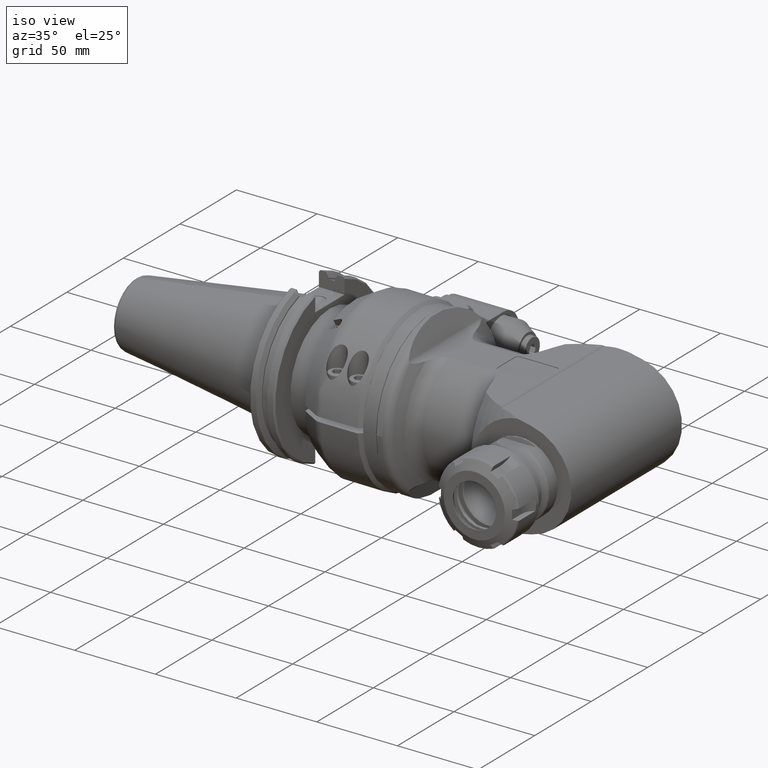
[diagram: clean part render]
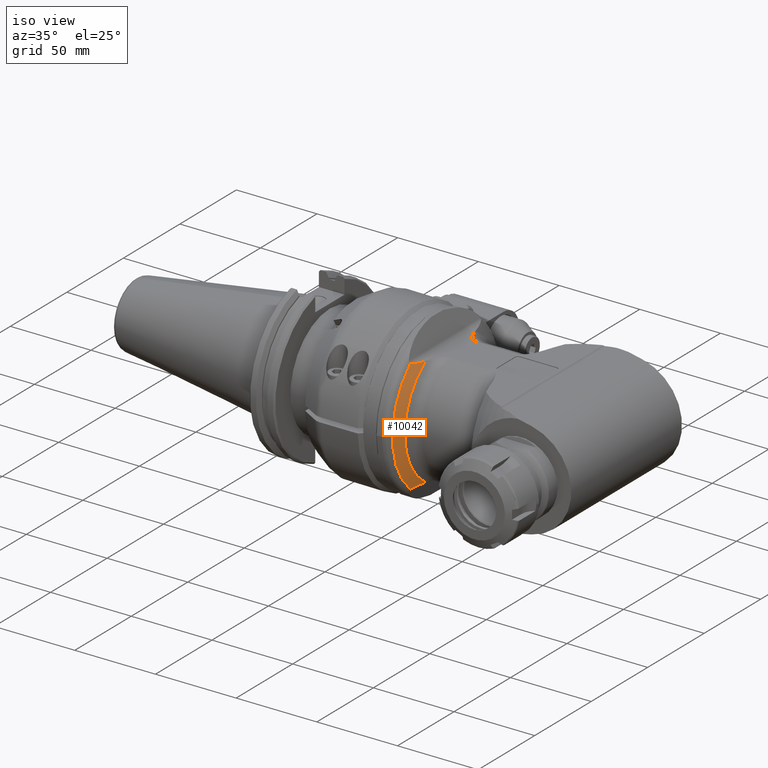
[diagram: same view with one face highlighted and labeled with its STEP entity id]
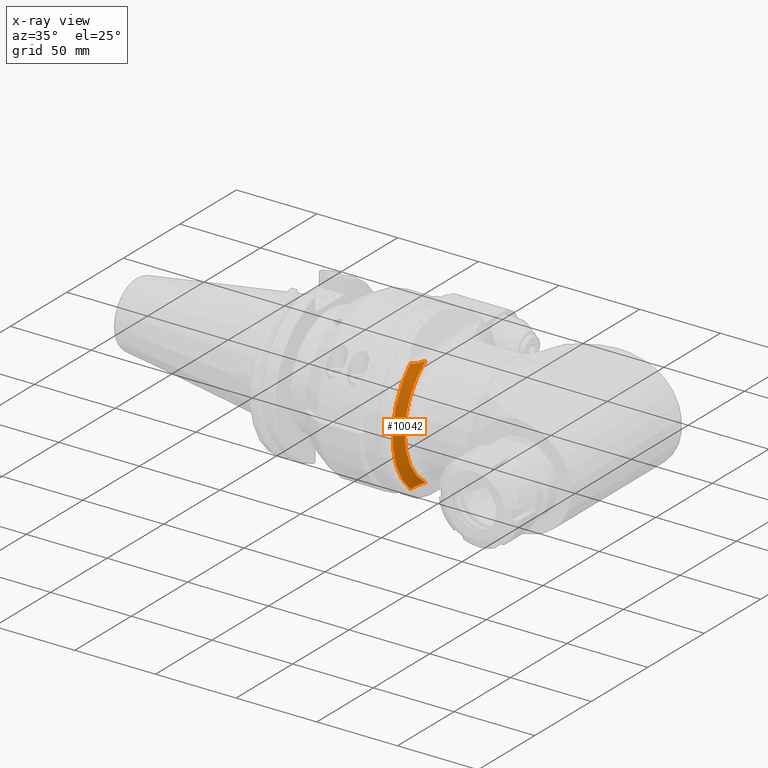
[diagram: x-ray of the same camera — body ghosted, the highlighted face saturated]
A machine part, iso view. The second image highlights one B-rep face of the part: STEP entity #10042.
The next image is the same camera in x-ray: the body ghosted, the highlighted face saturated — about 0% of this face is hidden behind the body in this view.
In plain terms, the highlighted conical surface has half-angle 65 deg.
Its self-contained STEP definition (entity closure, byte-faithful):
#60=CONICAL_SURFACE('',#10667,43.8660726827,1.13446401379631);
#181=(
BOUNDED_CURVE()
B_SPLINE_CURVE(2,(#14428,#14429,#14430),.UNSPECIFIED.,.F.,.F.)
B_SPLINE_CURVE_WITH_KNOTS((3,3),(1.07864842279424,1.10590893853555),
 .UNSPECIFIED.)
CURVE()
GEOMETRIC_REPRESENTATION_ITEM()
RATIONAL_B_SPLINE_CURVE((1.11342126184132,1.11460476665536,1.11577564847921))
REPRESENTATION_ITEM('')
);
#204=(
BOUNDED_CURVE()
B_SPLINE_CURVE(2,(#14649,#14650,#14651),.UNSPECIFIED.,.F.,.F.)
B_SPLINE_CURVE_WITH_KNOTS((3,3),(6.16316429996222,6.1904248157078),
 .UNSPECIFIED.)
CURVE()
GEOMETRIC_REPRESENTATION_ITEM()
RATIONAL_B_SPLINE_CURVE((1.11577564848434,1.11460476666033,1.11342126184614))
REPRESENTATION_ITEM('')
);
#343=B_SPLINE_CURVE_WITH_KNOTS('',3,(#14749,#14750,#14751,#14752,#14753,
#14754,#14755,#14756,#14757,#14758,#14759,#14760),.UNSPECIFIED.,.F.,.F.,
(4,2,2,2,2,4),(0.0997739753721126,0.164119844588905,0.247455831434621,0.400296157888808,
0.715773751995085,0.975847674785796),.UNSPECIFIED.);
#344=B_SPLINE_CURVE_WITH_KNOTS('',3,(#14763,#14764,#14765,#14766,#14767,
#14768,#14769,#14770,#14771,#14772,#14773,#14774),.UNSPECIFIED.,.F.,.F.,
(4,2,2,2,2,4),(5.24845933842711,5.50853326121871,5.82401085532499,5.97685118177917,
6.06018716862489,6.12453303785497),.UNSPECIFIED.);
#2317=FACE_OUTER_BOUND('',#2851,.T.);
#2851=EDGE_LOOP('',(#6784,#6785,#6786,#6787,#6788,#6789));
#3438=CIRCLE('',#10632,40.61905390607);
#3456=CIRCLE('',#10668,47.11309145933);
#3899=VERTEX_POINT('',#14362);
#3900=VERTEX_POINT('',#14375);
#3909=VERTEX_POINT('',#14427);
#3962=VERTEX_POINT('',#14648);
#3985=VERTEX_POINT('',#14748);
#3986=VERTEX_POINT('',#14761);
#5046=EDGE_CURVE('',#3899,#3900,#3438,.T.);
#5056=EDGE_CURVE('',#3909,#3900,#181,.T.);
#5120=EDGE_CURVE('',#3899,#3962,#204,.T.);
#5145=EDGE_CURVE('',#3985,#3962,#343,.T.);
#5146=EDGE_CURVE('',#3986,#3985,#3456,.T.);
#5147=EDGE_CURVE('',#3909,#3986,#344,.T.);
#6784=ORIENTED_EDGE('',*,*,#5120,.T.);
#6785=ORIENTED_EDGE('',*,*,#5145,.F.);
#6786=ORIENTED_EDGE('',*,*,#5146,.F.);
#6787=ORIENTED_EDGE('',*,*,#5147,.F.);
#6788=ORIENTED_EDGE('',*,*,#5056,.T.);
#6789=ORIENTED_EDGE('',*,*,#5046,.F.);
#10042=ADVANCED_FACE('',(#2317),#60,.T.);
#10632=AXIS2_PLACEMENT_3D('',#14376,#11656,#11657);
#10667=AXIS2_PLACEMENT_3D('',#14747,#11748,#11749);
#10668=AXIS2_PLACEMENT_3D('',#14762,#11750,#11751);
#11656=DIRECTION('center_axis',(1.,0.,0.));
#11657=DIRECTION('ref_axis',(0.,-0.547133144557407,0.83704559142661));
#11748=DIRECTION('center_axis',(-1.,0.,0.));
#11749=DIRECTION('ref_axis',(0.,-1.,0.));
#11750=DIRECTION('center_axis',(-1.,0.,0.));
#11751=DIRECTION('ref_axis',(0.,-1.,0.));
#14362=CARTESIAN_POINT('',(199.9375039441,-22.22403069258,34.));
#14375=CARTESIAN_POINT('',(199.9375039441,-22.22403069257,-34.));
#14376=CARTESIAN_POINT('Origin',(199.9375039441,0.,0.));
#14427=CARTESIAN_POINT('',(199.8639272009,-22.51112301207,-34.));
#14428=CARTESIAN_POINT('Ctrl Pts',(199.86392720093,-22.5111230120777,-34.));
#14429=CARTESIAN_POINT('Ctrl Pts',(199.900951665573,-22.3672985882799,-34.));
#14430=CARTESIAN_POINT('Ctrl Pts',(199.937503944114,-22.2240306925737,-34.));
#14648=CARTESIAN_POINT('',(199.8639272009,-22.51112301208,34.));
#14649=CARTESIAN_POINT('Ctrl Pts',(199.937503944274,-22.2240306919466,34.));
#14650=CARTESIAN_POINT('Ctrl Pts',(199.900951665729,-22.3672985876735,34.));
#14651=CARTESIAN_POINT('Ctrl Pts',(199.863927201081,-22.5111230114919,34.));
#14747=CARTESIAN_POINT('Origin',(198.4233942224,0.,0.));
#14748=CARTESIAN_POINT('',(196.909284501666,-31.197641652121,35.3036902037306));
#14749=CARTESIAN_POINT('Ctrl Pts',(196.909284501759,-31.1976416524674,35.303690203183));
#14750=CARTESIAN_POINT('Ctrl Pts',(197.002855799199,-31.0106402119476,35.2011538584506));
#14751=CARTESIAN_POINT('Ctrl Pts',(197.093380382329,-30.817288844984,35.112701446581));
#14752=CARTESIAN_POINT('Ctrl Pts',(197.282818318803,-30.3966997382881,34.9407984684583));
#14753=CARTESIAN_POINT('Ctrl Pts',(197.407485512355,-30.1042242458417,34.8406267936858));
#14754=CARTESIAN_POINT('Ctrl Pts',(197.694928596664,-29.4018627106173,34.6312606018711));
#14755=CARTESIAN_POINT('Ctrl Pts',(197.907861747891,-28.8427082796701,34.5056881458522));
#14756=CARTESIAN_POINT('Ctrl Pts',(198.43104870305,-27.3952659527972,34.2447406086038));
#14757=CARTESIAN_POINT('Ctrl Pts',(198.819156370089,-26.2003289654021,34.1267752193155));
#14758=CARTESIAN_POINT('Ctrl Pts',(199.367019023222,-24.3646443958043,34.022995041146));
#14759=CARTESIAN_POINT('Ctrl Pts',(199.62704599334,-23.4313065587749,33.9999999999984));
#14760=CARTESIAN_POINT('Ctrl Pts',(199.863927200927,-22.511123012087,34.));
#14761=CARTESIAN_POINT('',(196.909284501613,-31.1976416522546,-35.3036902037658));
#14762=CARTESIAN_POINT('Origin',(196.9092845007,0.,0.));
#14763=CARTESIAN_POINT('Ctrl Pts',(199.86392720093,-22.5111230120776,-34.));
#14764=CARTESIAN_POINT('Ctrl Pts',(199.627045993342,-23.4313065587686,-33.9999999999982));
#14765=CARTESIAN_POINT('Ctrl Pts',(199.367019023223,-24.3646443958014,-34.0229950411459));
#14766=CARTESIAN_POINT('Ctrl Pts',(198.819156370089,-26.2003289654021,-34.1267752193155));
#14767=CARTESIAN_POINT('Ctrl Pts',(198.43104870305,-27.3952659527972,-34.2447406086038));
#14768=CARTESIAN_POINT('Ctrl Pts',(197.907861747891,-28.8427082796701,-34.5056881458522));
#14769=CARTESIAN_POINT('Ctrl Pts',(197.694928596664,-29.4018627106173,-34.6312606018711));
#14770=CARTESIAN_POINT('Ctrl Pts',(197.407485512355,-30.1042242458417,-34.8406267936858));
#14771=CARTESIAN_POINT('Ctrl Pts',(197.282818318803,-30.3966997382881,-34.9407984684583));
#14772=CARTESIAN_POINT('Ctrl Pts',(197.093380382312,-30.8172888450218,-35.1127014465964));
#14773=CARTESIAN_POINT('Ctrl Pts',(197.002855799162,-31.0106402120274,-35.2011538584871));
#14774=CARTESIAN_POINT('Ctrl Pts',(196.909284501701,-31.1976416525833,-35.3036902032465));